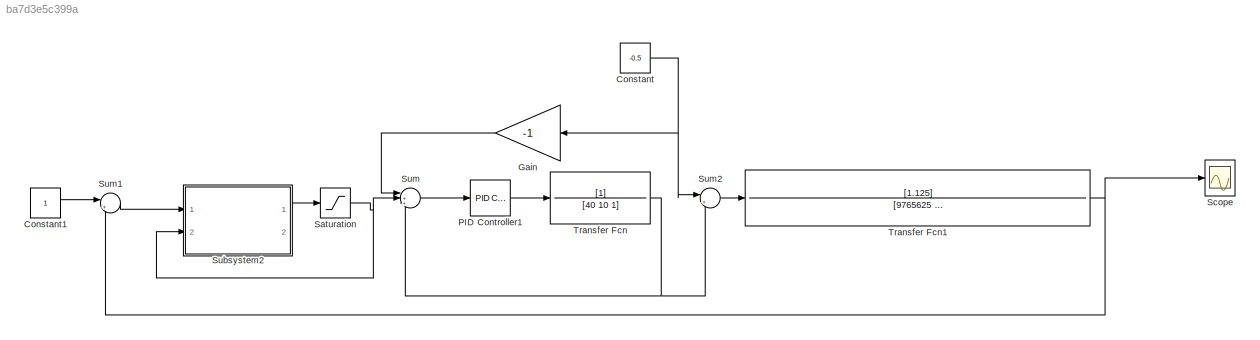
MODEL slx_ba7d3e5c399a
KIND model
CONFIG AbsTol = auto
CONFIG EnableMultiTasking = off
CONFIG FixedStep = auto
CONFIG MaxStep = auto
CONFIG MinStep = auto
CONFIG RelTol = 1e-3
CONFIG SampleTimeConstraint = Unconstrained
CONFIG Solver = VariableStepAuto
CONFIG SolverName = VariableStepAuto
CONFIG StartTime = 0.0
CONFIG StopTime = 600
BLOCK [Constant] Constant
  Value = -0.5
BLOCK [Constant] Constant1
BLOCK [Gain] Gain
  Gain = -1
  OutDataTypeStr = Inherit: Inherit via internal rule
  ParamDataTypeStr = Inherit: Inherit via internal rule
  SaturateOnIntegerOverflow = off
BLOCK [Reference] PID Controller1  REF=simulink/Continuous/PID Controller
  Ports = [1, 1]
  SourceBlock = simulink/Continuous/PID Controller
  SourceProductBaseCode = SL
  SourceProductName = Simulink
  SourceType = PID 1dof
BLOCK [Saturate] Saturation
  InputPortMap = u0
  LowerLimit = -1
  Ports = [1, 1]
  UpperLimit = 1
BLOCK [Scope] Scope
  Floating = off
  NumInputPorts = 1
  Ports = [1]
  ScopeSpecificationString = Simulink.scopes.TimeScopeBlockCfg('CurrentConfiguration', extmgr.ConfigurationSet(extmgr.Configuration('Core','General UI',true),extmgr.Configuration('Core','Source UI',true),extmgr.Configuration('Sources','WiredSimulink',true),extmgr.Configuration('Visuals','Time Domain',true,'SerializedDisplays',{struct('MinYLimReal','-0.14062','MaxYLimReal','1.26562','YLabelReal','','MinYLimMag','0.00000','MaxY...<+1435ch>
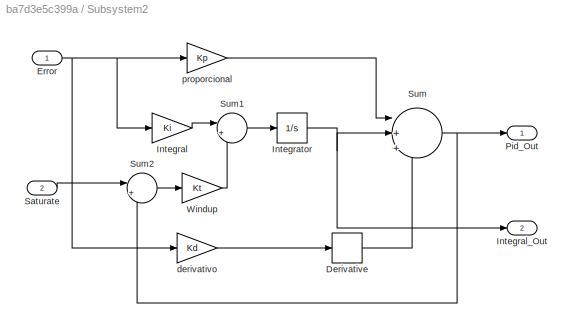
BLOCK [SubSystem] Subsystem2
  Ports = [2, 2]
  RequestExecContextInheritance = off
BLOCK [Derivative] Subsystem2/Derivative
BLOCK [Inport] Subsystem2/Error
  IconDisplay = Port number
BLOCK [Gain] Subsystem2/Integral
  Gain = Ki
BLOCK [Outport] Subsystem2/Integral_Out
  IconDisplay = Port number
  Port = 2
BLOCK [Integrator] Subsystem2/Integrator
  Ports = [1, 1]
BLOCK [Outport] Subsystem2/Pid_Out
  IconDisplay = Port number
BLOCK [Inport] Subsystem2/Saturate
  IconDisplay = Port number
  Port = 2
BLOCK [Sum] Subsystem2/Sum
  IconShape = round
  Inputs = |+++
  Ports = [3, 1]
BLOCK [Sum] Subsystem2/Sum1
  IconShape = round
  Inputs = |++
  Ports = [2, 1]
BLOCK [Sum] Subsystem2/Sum2
  IconShape = round
  Inputs = |+-
  Ports = [2, 1]
BLOCK [Gain] Subsystem2/Windup
  Gain = Kt
BLOCK [Gain] Subsystem2/derivativo
  Gain = Kd
BLOCK [Gain] Subsystem2/proporcional
  Gain = Kp
BLOCK [Sum] Sum
  IconShape = round
  InputSameDT = off
  Inputs = |++-
  OutDataTypeStr = Inherit: Inherit via internal rule
  Ports = [3, 1]
  SaturateOnIntegerOverflow = off
BLOCK [Sum] Sum1
  IconShape = round
  InputSameDT = off
  Inputs = |+-
  OutDataTypeStr = Inherit: Inherit via internal rule
  Ports = [2, 1]
  SaturateOnIntegerOverflow = off
BLOCK [Sum] Sum2
  IconShape = round
  InputSameDT = off
  Inputs = |++
  OutDataTypeStr = Inherit: Inherit via internal rule
  Ports = [2, 1]
  SaturateOnIntegerOverflow = off
BLOCK [TransferFcn] Transfer Fcn
  Denominator = [40 10 1]
BLOCK [TransferFcn] Transfer Fcn1
  Denominator = [9765625     1953125      156250        6250         125           1 ]
  Numerator = [1.125]
LINE Constant1:1 -> Sum1:1
NET Constant:1 -> Gain:1, Sum2:1
LINE Gain:1 -> Sum:1
LINE PID Controller1:1 -> Transfer Fcn:1
NET Saturation:1 -> Subsystem2:2, Sum:2
LINE Subsystem2/Derivative:1 -> Subsystem2/Sum:3
NET Subsystem2/Error:1 -> Subsystem2/Integral:1, Subsystem2/derivativo:1, Subsystem2/proporcional:1
LINE Subsystem2/Integral:1 -> Subsystem2/Sum1:1
NET Subsystem2/Integrator:1 -> Subsystem2/Integral_Out:1, Subsystem2/Sum:2
LINE Subsystem2/Saturate:1 -> Subsystem2/Sum2:1
LINE Subsystem2/Sum1:1 -> Subsystem2/Integrator:1
LINE Subsystem2/Sum2:1 -> Subsystem2/Windup:1
NET Subsystem2/Sum:1 -> Subsystem2/Pid_Out:1, Subsystem2/Sum2:2
LINE Subsystem2/Windup:1 -> Subsystem2/Sum1:2
LINE Subsystem2/derivativo:1 -> Subsystem2/Derivative:1
LINE Subsystem2/proporcional:1 -> Subsystem2/Sum:1
LINE Subsystem2:1 -> Saturation:1
LINE Sum1:1 -> Subsystem2:1
LINE Sum2:1 -> Transfer Fcn1:1
LINE Sum:1 -> PID Controller1:1
NET Transfer Fcn1:1 -> Scope:1, Sum1:2
NET Transfer Fcn:1 -> Sum2:2, Sum:3
note: NET lines group one-source signal fan-out (src -> all destinations, sorted); 1:1 wires keep LINE
